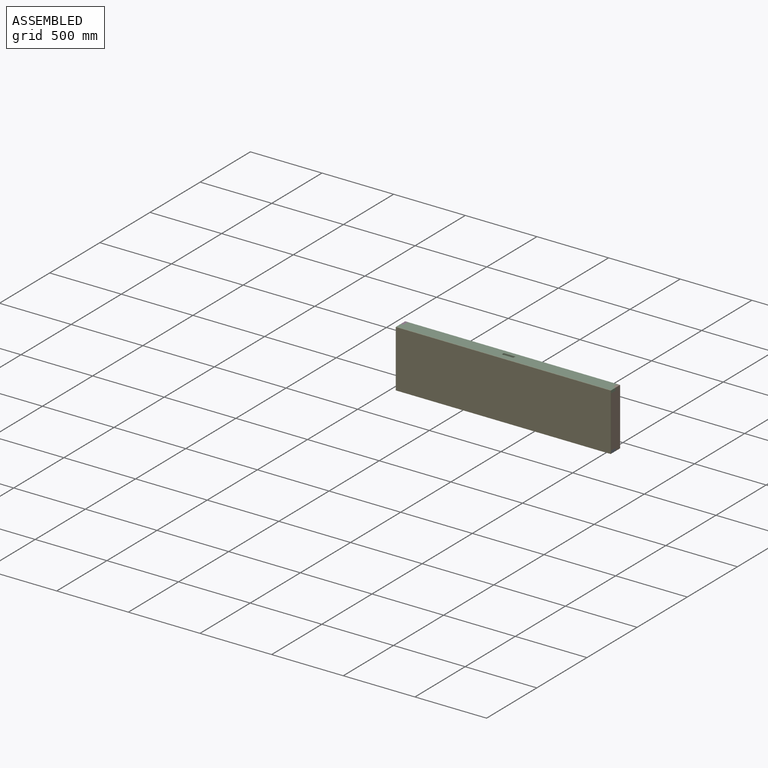
[diagram: assembled view]
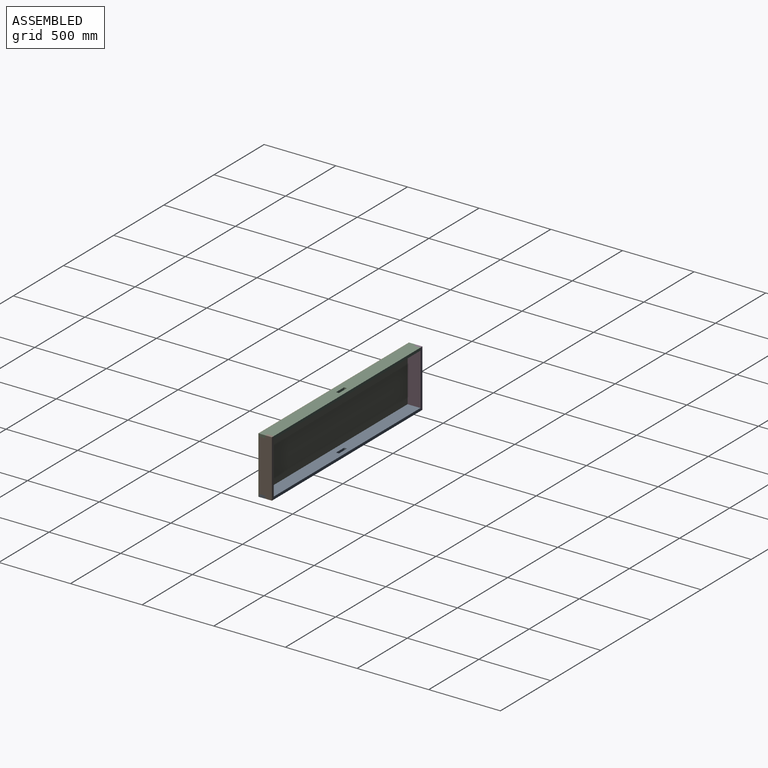
[diagram: assembled view, second angle]
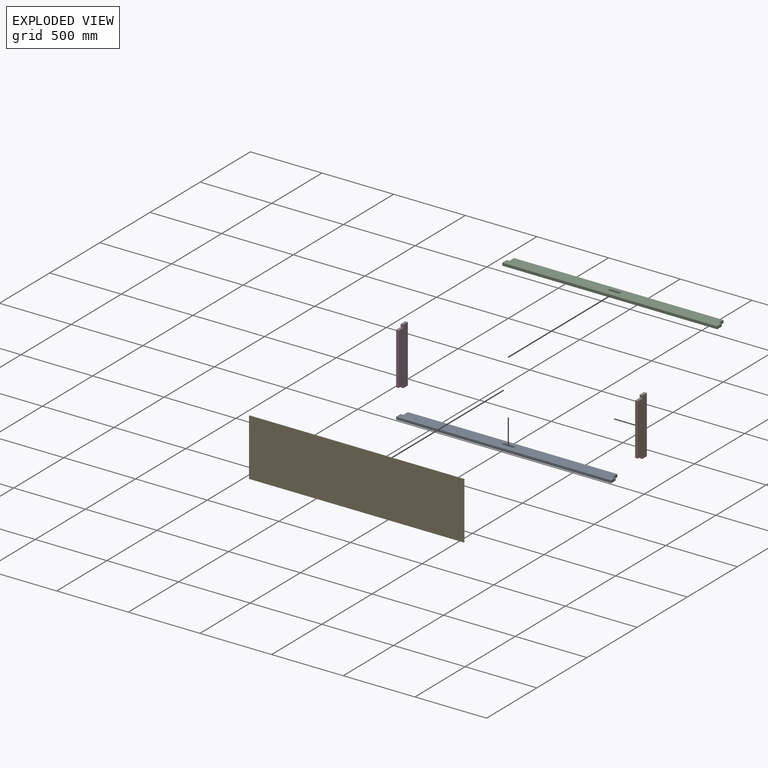
[diagram: exploded view]
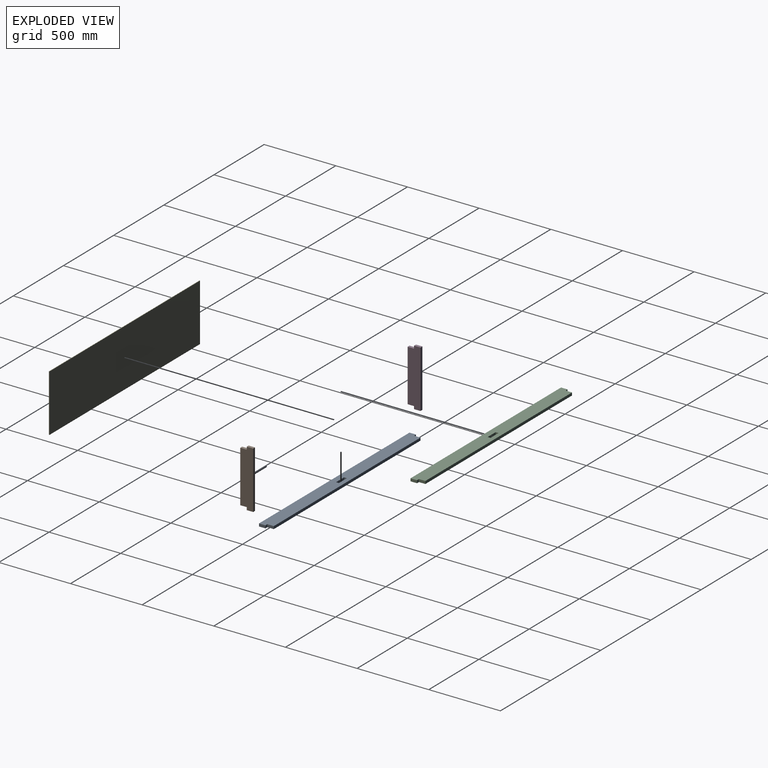
[diagram: exploded view, second angle]
ASSEMBLY  parts=5 mates=4
PART A: 14 faces, bbox 1500x90x19 mm
  f0: plane 45x19mm, normal (-1,0,0), area 855mm2, adj f1,f11,f12,f13
  f1: plane 19x19mm, normal (0,1,0), area 361mm2, adj f0,f2,f12,f13
  f2: plane 45x19mm, normal (-1,0,0), area 855mm2, adj f1,f3,f12,f13
  f3: plane 1500x19mm, normal (0,-1,0), area 28500mm2, adj f2,f4,f12,f13
  f4: plane 45x19mm, normal (1,0,0), area 855mm2, adj f3,f5,f12,f13
  f5: plane 19x19mm, normal (0,1,0), area 361mm2, adj f4,f6,f12,f13
  f6: plane 45x19mm, normal (1,0,0), area 855mm2, adj f5,f11,f12,f13
  f7: plane 20x19mm, normal (1,0,0), area 380mm2, adj f8,f10,f12,f13
  f8: plane 80x19mm, normal (0,-1,0), area 1520mm2, adj f7,f9,f12,f13
  f9: plane 20x19mm, normal (-1,0,0), area 380mm2, adj f8,f10,f12,f13
  f10: plane 80x19mm, normal (0,1,0), area 1520mm2, adj f7,f9,f12,f13
  f11: plane 1462x19mm, normal (0,1,0), area 27778mm2, adj f0,f6,f12,f13
  f12: plane 1500x90mm, normal (0,0,1), area 131690mm2, adj f0,f1,f2,f3,f4,f5,f6,f7
  f13: plane 1500x90mm, normal (0,0,-1), area 131690mm2, adj f0,f1,f2,f3,f4,f5,f6,f7
PART B: 10 faces, bbox 400x90x19 mm
  f0: plane 45x19mm, normal (1,0,0), area 855mm2, adj f1,f7,f8,f9
  f1: plane 19x19mm, normal (0,-1,0), area 361mm2, adj f0,f2,f8,f9
  f2: plane 45x19mm, normal (1,0,0), area 855mm2, adj f1,f3,f8,f9
  f3: plane 400x19mm, normal (0,1,0), area 7600mm2, adj f2,f4,f8,f9
  f4: plane 45x19mm, normal (-1,0,0), area 855mm2, adj f3,f5,f8,f9
  f5: plane 19x19mm, normal (0,-1,0), area 361mm2, adj f4,f6,f8,f9
  f6: plane 45x19mm, normal (-1,0,0), area 855mm2, adj f5,f7,f8,f9
  f7: plane 362x19mm, normal (0,-1,0), area 6878mm2, adj f0,f6,f8,f9
  f8: plane 400x90mm, normal (0,0,1), area 34290mm2, adj f0,f1,f2,f3,f4,f5,f6,f7
  f9: plane 400x90mm, normal (0,0,-1), area 34290mm2, adj f0,f1,f2,f3,f4,f5,f6,f7
PART C: same geometry as A
PART D: same geometry as B
PART E: 6 faces, bbox 1500x400x4 mm
  f0: plane 1500x4mm, normal (0,1,0), area 6000mm2, adj f1,f3,f4,f5
  f1: plane 400x4mm, normal (-1,0,0), area 1600mm2, adj f0,f2,f4,f5
  f2: plane 1500x4mm, normal (0,-1,0), area 6000mm2, adj f1,f3,f4,f5
  f3: plane 400x4mm, normal (1,0,0), area 1600mm2, adj f0,f2,f4,f5
  f4: plane 1500x400mm, normal (0,0,1), area 600000mm2, adj f0,f1,f2,f3
  f5: plane 1500x400mm, normal (0,0,-1), area 600000mm2, adj f0,f1,f2,f3
PLACE A t=(167.82,146.68,-562.71)mm
PLACE B rot(axis=(0,-1,0),90deg) t=(1290.26,-49.77,-188.07)mm
PLACE C t=(167.82,146.68,-181.71)mm
PLACE D rot(axis=(0,1,0),90deg) t=(-209.74,-49.77,-537.35)mm
PLACE E rot(axis=(1,0,0),90deg) t=(280.7,-31.54,315.85)mm fixed
MATE fastened C.f3 <-> E.f5  axis (0,-1,0) through (-209.74,-31.54,-162.71)mm
MATE fastened C.f12 <-> B.f2  axis (0,0,1) through (1271.26,13.46,-162.71)mm
MATE fastened D.f9 <-> C.f2  axis (-1,0,0) through (-209.74,13.46,-181.71)mm
MATE fastened B.f9 <-> A.f4  axis (1,0,0) through (1290.26,13.46,-543.71)mm
